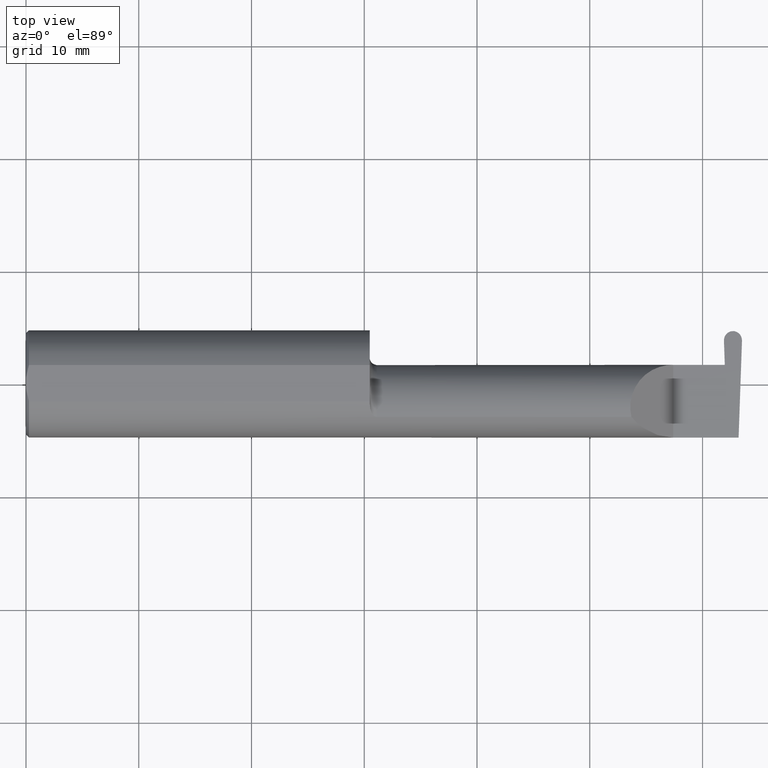
[diagram: clean part render]
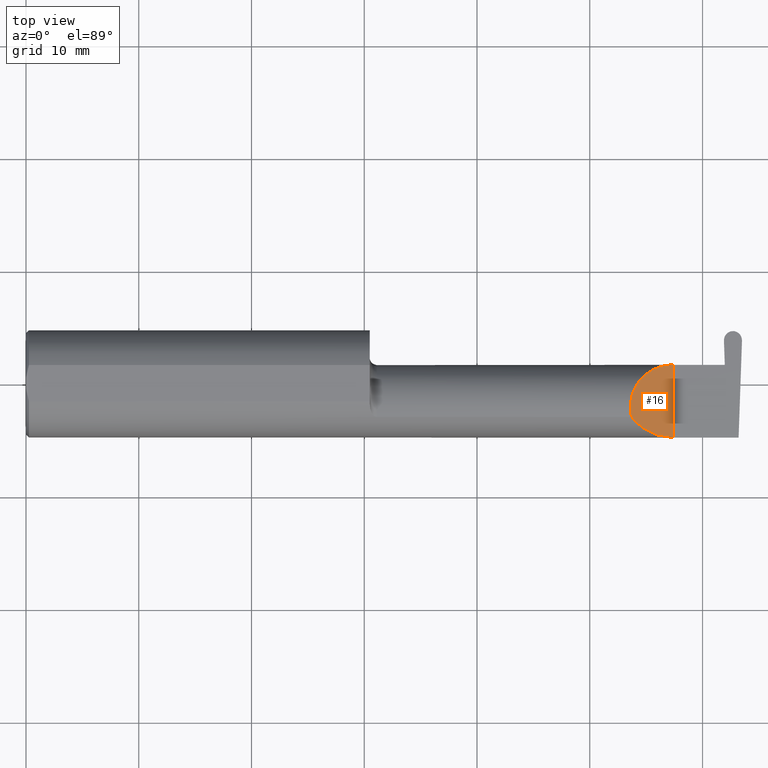
[diagram: same view with one face highlighted and labeled with its STEP entity id]
A machine part, top view. The second image highlights one B-rep face of the part: STEP entity #16.
In plain terms, the highlighted planar face has unit normal (-0.7071, 0, -0.7071).
Its self-contained STEP definition (entity closure, byte-faithful):
#4 = AXIS2_PLACEMENT_3D ( 'NONE', #103, #274, #334 ) ;
#16 = ADVANCED_FACE ( 'NONE', ( #546 ), #108, .F. ) ;
#41 = EDGE_CURVE ( 'NONE', #201, #161, #643, .T. ) ;
#47 = VERTEX_POINT ( 'NONE', #277 ) ;
#54 = CARTESIAN_POINT ( 'NONE',  ( 2.155331797197863608, 0.06664999999999991764, 0.1046682028021361927 ) ) ;
#95 = ORIENTED_EDGE ( 'NONE', *, *, #41, .F. ) ;
#103 = CARTESIAN_POINT ( 'NONE',  ( 2.260000000000000231, -0.2500000000000000555, 2.939152317953647352E-17 ) ) ;
#108 = PLANE ( 'NONE',  #4 ) ;
#161 = VERTEX_POINT ( 'NONE', #501 ) ;
#164 = CARTESIAN_POINT ( 'NONE',  ( 2.260000000000000231, 0.06664999999999993152, 1.592040838891559588E-16 ) ) ;
#196 = ORIENTED_EDGE ( 'NONE', *, *, #429, .T. ) ;
#201 = VERTEX_POINT ( 'NONE', #346 ) ;
#233 = EDGE_CURVE ( 'NONE', #47, #201, #427, .T. ) ;
#239 = CARTESIAN_POINT ( 'NONE',  ( 2.202189699843948745, -0.1873500000000000443, 0.05781030015605096578 ) ) ;
#271 = ORIENTED_EDGE ( 'NONE', *, *, #233, .F. ) ;
#274 = DIRECTION ( 'NONE',  ( -0.7071067811865441310, 0.000000000000000000, -0.7071067811865510144 ) ) ;
#277 = CARTESIAN_POINT ( 'NONE',  ( 2.260000000000000231, -0.1873499999999999888, 2.939152317953647352E-17 ) ) ;
#295 = CARTESIAN_POINT ( 'NONE',  ( 2.113883229301068312, -0.1172600179964008726, 0.1461167706989301429 ) ) ;
#299 = CARTESIAN_POINT ( 'NONE',  ( 2.260000000000000231, -0.1873499999999999888, 2.939152317953647352E-17 ) ) ;
#334 = DIRECTION ( 'NONE',  ( -0.7071067811865509034, 0.000000000000000000, 0.7071067811865440200 ) ) ;
#346 = CARTESIAN_POINT ( 'NONE',  ( 2.113883229301068312, -0.1172600179964008726, 0.1461167706989301429 ) ) ;
#387 = CARTESIAN_POINT ( 'NONE',  ( 2.113883229301068312, -0.1172600179964008726, 0.1461167706989301429 ) ) ;
#414 = DIRECTION ( 'NONE',  ( -0.000000000000000000, 1.000000000000000000, -0.000000000000000000 ) ) ;
#427 =( BOUNDED_CURVE ( )  B_SPLINE_CURVE ( 3, ( #299, #239, #467, #295 ),
 .UNSPECIFIED., .F., .T. ) 
 B_SPLINE_CURVE_WITH_KNOTS ( ( 4, 4 ),
 ( 4.712388980384688786, 5.606916381293135743 ),
 .UNSPECIFIED. ) 
 CURVE ( )  GEOMETRIC_REPRESENTATION_ITEM ( )  RATIONAL_B_SPLINE_CURVE ( ( 1.000000000000000000, 0.9344226172588803170, 0.9344226172588803170, 1.000000000000000000 ) ) 
 REPRESENTATION_ITEM ( '' )  );
#429 = EDGE_CURVE ( 'NONE', #47, #161, #691, .T. ) ;
#452 = CARTESIAN_POINT ( 'NONE',  ( 2.260000000000000231, -0.2500000000000000555, 2.939152317953647352E-17 ) ) ;
#467 = CARTESIAN_POINT ( 'NONE',  ( 2.150065971957465294, -0.1623470442677542591, 0.1099340280425336325 ) ) ;
#491 = CARTESIAN_POINT ( 'NONE',  ( 2.090221225029925911, -0.01530148607434188811, 0.1697787749700727378 ) ) ;
#501 = CARTESIAN_POINT ( 'NONE',  ( 2.260000000000000231, 0.06664999999999993152, 1.592040838891559588E-16 ) ) ;
#546 = FACE_OUTER_BOUND ( 'NONE', #585, .T. ) ;
#585 = EDGE_LOOP ( 'NONE', ( #95, #271, #196 ) ) ;
#640 = VECTOR ( 'NONE', #414, 39.37007874015748143 ) ;
#643 =( BOUNDED_CURVE ( )  B_SPLINE_CURVE ( 3, ( #387, #491, #54, #164 ),
 .UNSPECIFIED., .F., .T. ) 
 B_SPLINE_CURVE_WITH_KNOTS ( ( 4, 4 ),
 ( 6.055147272130140479, 7.853981633974482790 ),
 .UNSPECIFIED. ) 
 CURVE ( )  GEOMETRIC_REPRESENTATION_ITEM ( )  RATIONAL_B_SPLINE_CURVE ( ( 1.000000000000000000, 0.7480442670255262883, 0.7480442670255262883, 1.000000000000000000 ) ) 
 REPRESENTATION_ITEM ( '' )  );
#691 = LINE ( 'NONE', #452, #640 ) ;